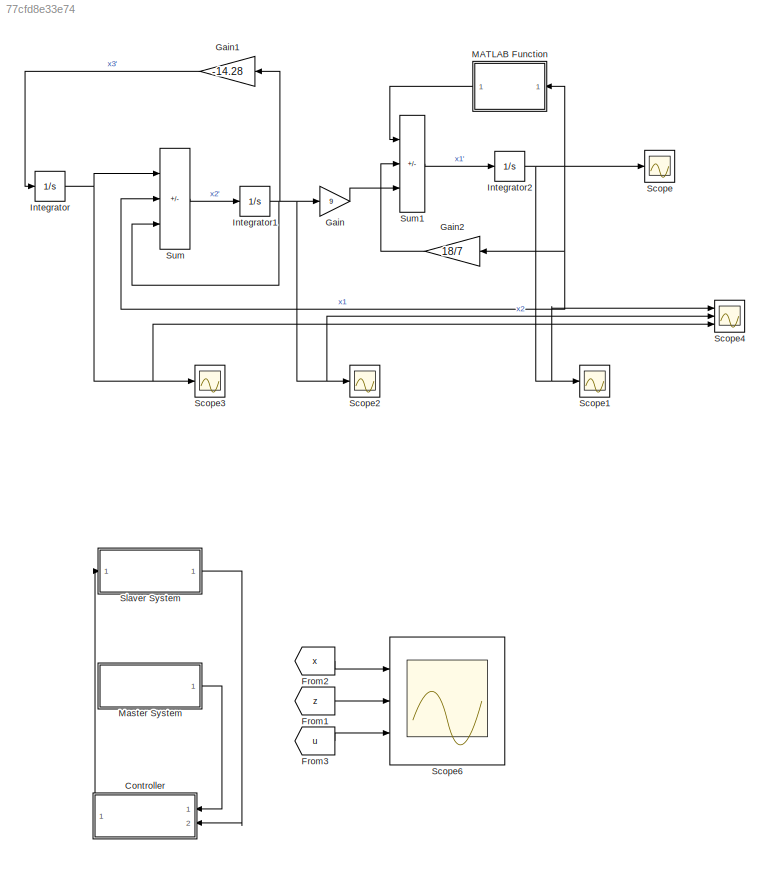
MODEL slx_77cfd8e33e74
KIND model
CONFIG AbsTol = auto
CONFIG FixedStep = auto
CONFIG MaxStep = auto
CONFIG MinStep = auto
CONFIG RelTol = 1e-3
CONFIG SampleTimeConstraint = Unconstrained
CONFIG Solver = ode45
CONFIG SolverMode = SingleTasking
CONFIG SolverName = ode45
CONFIG StartTime = 0.0
CONFIG StopTime = 50
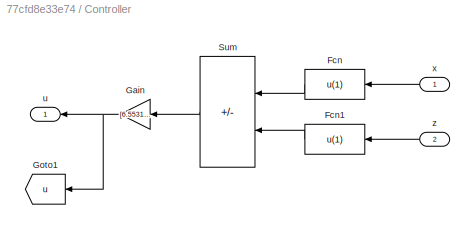
BLOCK [SubSystem] Controller
  Ports = [2, 1]
  RequestExecContextInheritance = off
BLOCK [Fcn] Controller/Fcn
  Expr = u(1)
BLOCK [Fcn] Controller/Fcn1
  Expr = u(1)
BLOCK [Gain] Controller/Gain
  Gain = [6.5531;1.4395;-0.5402]
  Multiplication = Matrix(K*u)
BLOCK [Goto] Controller/Goto1
  GotoTag = u
  IconDisplay = Signal name
  TagVisibility = global
BLOCK [Sum] Controller/Sum
  IconShape = rectangular
  Inputs = +-
  Ports = [2, 1]
BLOCK [Outport] Controller/u
BLOCK [Inport] Controller/x
BLOCK [Inport] Controller/z
  Port = 2
BLOCK [From] From1
  GotoTag = z
  IconDisplay = Signal name
  TagVisibility = global
BLOCK [From] From2
  GotoTag = x
  IconDisplay = Signal name
  TagVisibility = global
BLOCK [From] From3
  GotoTag = u
  IconDisplay = Signal name
  TagVisibility = global
BLOCK [Gain] Gain
  Gain = 9
BLOCK [Gain] Gain1
  Gain = -14.28
BLOCK [Gain] Gain2
  Gain = 18/7
BLOCK [Integrator] Integrator
  InitialCondition = 0.2
  Ports = [1, 1]
BLOCK [Integrator] Integrator1
  InitialCondition = 0.1
  Ports = [1, 1]
BLOCK [Integrator] Integrator2
  InitialCondition = -0.1
  Ports = [1, 1]
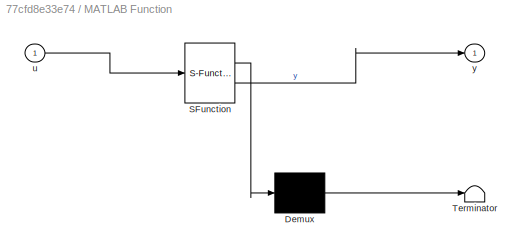
BLOCK [SubSystem] MATLAB Function
  ErrorFcn = Stateflow.Translate.translate
  PermitHierarchicalResolution = ParametersOnly
  Ports = [1, 1]
  RequestExecContextInheritance = off
  SFBlockType = MATLAB Function
  TreatAsAtomicUnit = on
BLOCK [Demux] MATLAB Function/ Demux 
  Outputs = 1
  Ports = [1, 1]
BLOCK [S-Function] MATLAB Function/ SFunction 
  EnableBusSupport = on
  FunctionName = sf_sfun
  PortCounts = [1 2]
  Ports = [1, 2]
  SFunctionDeploymentMode = off
  Tag = Stateflow S-Function test2 2
BLOCK [Terminator] MATLAB Function/ Terminator 
BLOCK [Inport] MATLAB Function/u
BLOCK [Outport] MATLAB Function/y
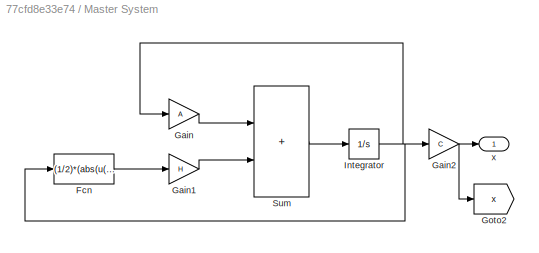
BLOCK [SubSystem] Master System
  Ports = [0, 1]
  RequestExecContextInheritance = off
BLOCK [Fcn] Master System/Fcn
  Expr = (1/2)*(abs(u(1)+1)-abs(u(1)-1))
BLOCK [Gain] Master System/Gain
  Gain = A
  Multiplication = Matrix(K*u)
BLOCK [Gain] Master System/Gain1
  Gain = H
  Multiplication = Matrix(K*u)
BLOCK [Gain] Master System/Gain2
  Gain = C
  Multiplication = Matrix(K*u)
BLOCK [Goto] Master System/Goto2
  GotoTag = x
  IconDisplay = Signal name
  TagVisibility = global
BLOCK [Integrator] Master System/Integrator
  InitialCondition = [-0.2;0.3;0.7]
  Ports = [1, 1]
BLOCK [Sum] Master System/Sum
  IconShape = rectangular
  Ports = [2, 1]
BLOCK [Outport] Master System/x
BLOCK [Scope] Scope
  DataFormat = StructureWithTime
  Decimation = 1
  Floating = off
  Grid = on
  LimitDataPoints = off
  MaxDataPoints = 5000
  NumInputPorts = 1
  Ports = [1]
  SampleInput = off
  SampleTime = -1
  SaveName = ScopeData1
  SaveToWorkspace = on
  ShowLegends = on
  TickLabels = OneTimeTick
  TimeRange = auto
  YMax = 2.78671
  YMin = -2.79676
  ZoomMode = on
BLOCK [Scope] Scope1
  DataFormat = StructureWithTime
  Decimation = 1
  Floating = off
  Grid = on
  LimitDataPoints = off
  MaxDataPoints = 5000
  NumInputPorts = 1
  Ports = [1]
  SampleInput = off
  SampleTime = -1
  SaveName = ScopeData2
  SaveToWorkspace = on
  ShowLegends = on
  TickLabels = OneTimeTick
  TimeRange = auto
  YMax = 2.78671
  YMin = -2.79676
  ZoomMode = on
BLOCK [Scope] Scope2
  DataFormat = StructureWithTime
  Decimation = 1
  Floating = off
  Grid = on
  LimitDataPoints = off
  MaxDataPoints = 5000
  NumInputPorts = 1
  Ports = [1]
  SampleInput = off
  SampleTime = -1
  SaveName = ScopeData3
  SaveToWorkspace = on
  ShowLegends = on
  TickLabels = OneTimeTick
  TimeRange = auto
  YMax = 0.46692
  YMin = -0.48811
  ZoomMode = on
BLOCK [Scope] Scope3
  DataFormat = StructureWithTime
  Decimation = 1
  Floating = off
  Grid = on
  LimitDataPoints = off
  MaxDataPoints = 5000
  NumInputPorts = 1
  Ports = [1]
  SampleInput = off
  SampleTime = -1
  SaveName = ScopeData
  SaveToWorkspace = on
  ShowLegends = on
  TickLabels = OneTimeTick
  TimeRange = auto
  YMax = 3.86542
  YMin = -3.88567
  ZoomMode = on
BLOCK [Scope] Scope4
  DataFormat = StructureWithTime
  Decimation = 1
  Floating = off
  Grid = on
  LimitDataPoints = off
  MaxDataPoints = 5000
  NumInputPorts = 3
  Ports = [3]
  SampleInput = off
  SampleTime = -1
  SaveName = ScopeData4
  SaveToWorkspace = on
  ShowLegends = on
  TickLabels = OneTimeTick
  TimeRange = auto
  YMax = 3.86542~5~5
  YMin = -3.88567~-5~-5
  ZoomMode = on
BLOCK [Scope] Scope6
  DataFormat = StructureWithTime
  Decimation = 1
  Floating = off
  Grid = on
  LimitDataPoints = off
  MaxDataPoints = 5000
  NumInputPorts = 3
  Ports = [3]
  SampleInput = off
  SampleTime = -1
  SaveName = ScopeData22
  SaveToWorkspace = on
  ShowLegends = on
  TickLabels = OneTimeTick
  TimeRange = auto
  YMax = 2.78088~2.78088~0.57075
  YMin = -2.77551~-2.77551~-2.97591
  ZoomMode = on
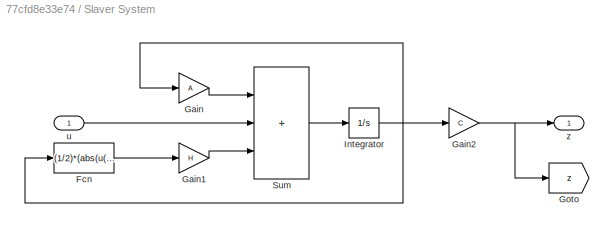
BLOCK [SubSystem] Slaver System
  Ports = [1, 1]
  RequestExecContextInheritance = off
BLOCK [Fcn] Slaver System/Fcn
  Expr = (1/2)*(abs(u(1)+1)-abs(u(1)-1))
BLOCK [Gain] Slaver System/Gain
  Gain = A
  Multiplication = Matrix(K*u)
BLOCK [Gain] Slaver System/Gain1
  Gain = H
  Multiplication = Matrix(K*u)
BLOCK [Gain] Slaver System/Gain2
  Gain = C
  Multiplication = Matrix(K*u)
BLOCK [Goto] Slaver System/Goto
  GotoTag = z
  IconDisplay = Signal name
  TagVisibility = global
BLOCK [Integrator] Slaver System/Integrator
  InitialCondition = [0.2;0.3;0.7]
  Ports = [1, 1]
BLOCK [Sum] Slaver System/Sum
  IconShape = rectangular
  Inputs = +++
  Ports = [3, 1]
BLOCK [Inport] Slaver System/u
BLOCK [Outport] Slaver System/z
BLOCK [Sum] Sum
  IconShape = rectangular
  Inputs = |++-
  Ports = [3, 1]
BLOCK [Sum] Sum1
  IconShape = rectangular
  Inputs = |+-+
  Ports = [3, 1]
LINE Controller/Fcn1:1 -> Controller/Sum:2
LINE Controller/Fcn:1 -> Controller/Sum:1
NET Controller/Gain:1 -> Controller/Goto1:1, Controller/u:1
LINE Controller/Sum:1 -> Controller/Gain:1
LINE Controller/x:1 -> Controller/Fcn:1
LINE Controller/z:1 -> Controller/Fcn1:1
LINE Controller:1 -> Slaver System:1
LINE From1:1 -> Scope6:2
LINE From2:1 -> Scope6:1
LINE From3:1 -> Scope6:3
LINE Gain1:1 -> Integrator:1
LINE Gain2:1 -> Sum1:2
LINE Gain:1 -> Sum1:3
NET Integrator1:1 -> Gain1:1, Gain:1, Scope2:1, Scope4:2, Sum:3
NET Integrator2:1 -> Gain2:1, MATLAB Function:1, Scope1:1, Scope4:1, Scope:1, Sum:2
NET Integrator:1 -> Scope3:1, Scope4:3, Sum:1
LINE MATLAB Function:1 -> Sum1:1
LINE Master System/Fcn:1 -> Master System/Gain1:1
LINE Master System/Gain1:1 -> Master System/Sum:2
NET Master System/Gain2:1 -> Master System/Goto2:1, Master System/x:1
LINE Master System/Gain:1 -> Master System/Sum:1
NET Master System/Integrator:1 -> Master System/Fcn:1, Master System/Gain2:1, Master System/Gain:1
LINE Master System/Sum:1 -> Master System/Integrator:1
LINE Master System:1 -> Controller:1
LINE Slaver System/Fcn:1 -> Slaver System/Gain1:1
LINE Slaver System/Gain1:1 -> Slaver System/Sum:3
NET Slaver System/Gain2:1 -> Slaver System/Goto:1, Slaver System/z:1
LINE Slaver System/Gain:1 -> Slaver System/Sum:1
NET Slaver System/Integrator:1 -> Slaver System/Fcn:1, Slaver System/Gain2:1, Slaver System/Gain:1
LINE Slaver System/Sum:1 -> Slaver System/Integrator:1
LINE Slaver System/u:1 -> Slaver System/Sum:2
LINE Slaver System:1 -> Controller:2
LINE Sum1:1 -> Integrator2:1
LINE Sum:1 -> Integrator1:1
note: NET lines group one-source signal fan-out (src -> all destinations, sorted); 1:1 wires keep LINE
CHART MATLAB Function states=1 transitions=1
  STATE_LABEL 'eML_blk_kernel()'
  STATE_LABEL 'SCRIPT:\nfunction y = fcn(u)\n\ny = 9*3/14*(abs(u+1)-abs(u-1));\n'
